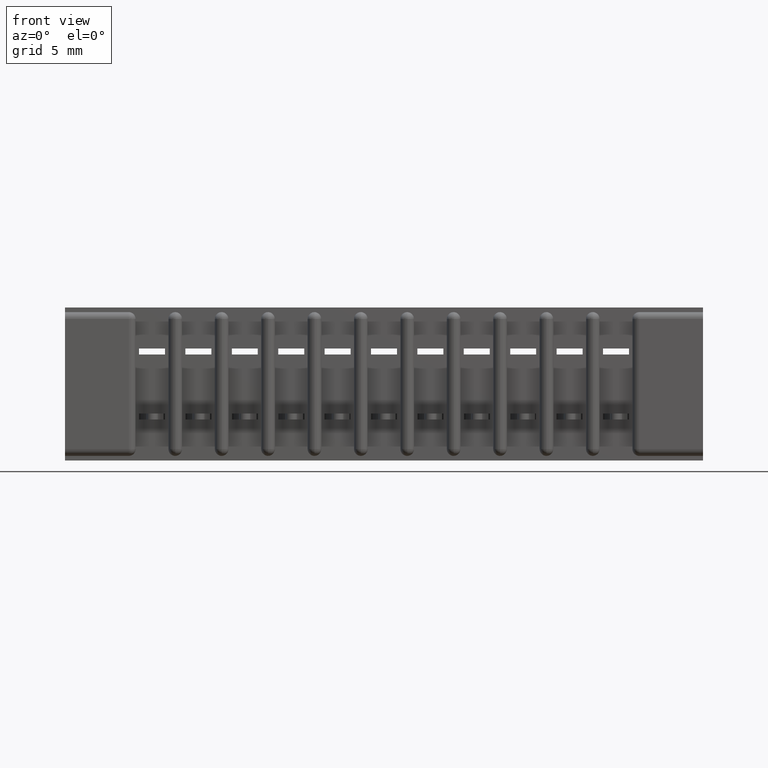
[diagram: clean part render]
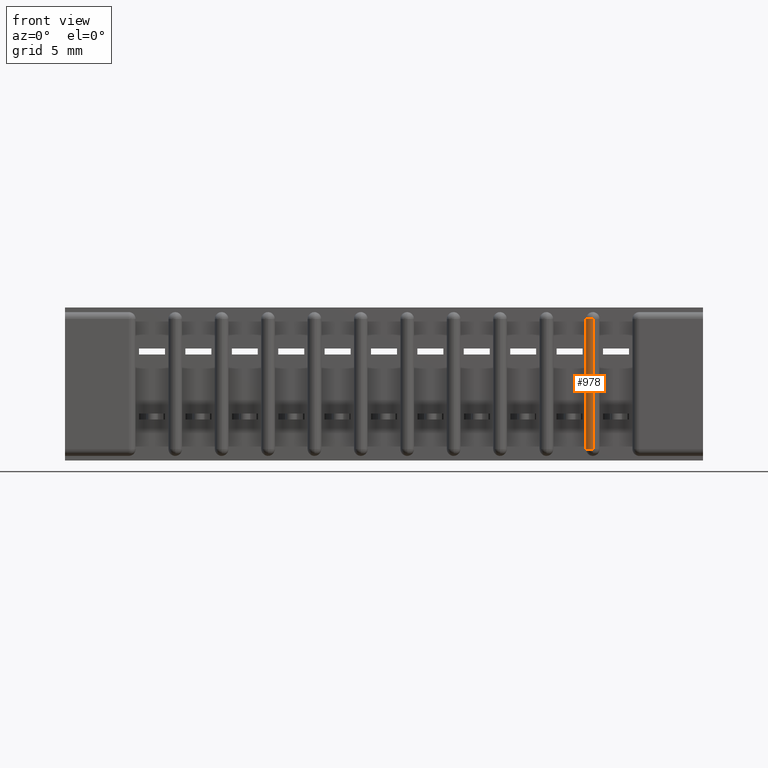
[diagram: same view with one face highlighted and labeled with its STEP entity id]
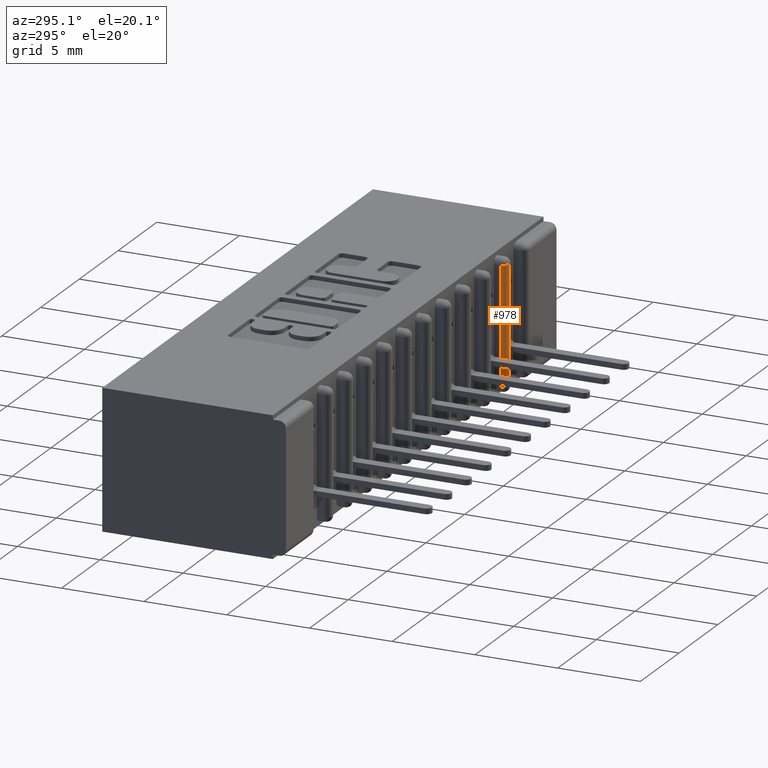
[diagram: same view with one face highlighted and labeled with its STEP entity id]
A machine part, front view. The second image highlights one B-rep face of the part: STEP entity #978.
A second angle (auxiliary view) of the same face is appended — the face is thin or edge-on in the first view.
In plain terms, the highlighted cylindrical surface (edge-blend (fillet) strip) has radius 0.381 mm, axis along (0, 0, 1).
Its self-contained STEP definition (entity closure, byte-faithful):
#59 = VERTEX_POINT ( 'NONE', #14224 ) ;
#647 = CARTESIAN_POINT ( 'NONE',  ( 1.437750000000000500, 0.01499999999999999900, -0.02499999999999997400 ) ) ;
#857 = EDGE_CURVE ( 'NONE', #7519, #3554, #4468, .T. ) ;
#978 = ADVANCED_FACE ( 'NONE', ( #3733 ), #3588, .T. ) ;
#1093 = EDGE_CURVE ( 'NONE', #59, #3554, #3076, .T. ) ;
#1196 = EDGE_CURVE ( 'NONE', #10614, #59, #2668, .T. ) ;
#2043 = DIRECTION ( 'NONE',  ( 0.0000000000000000000, 0.0000000000000000000, -1.000000000000000000 ) ) ;
#2668 = CIRCLE ( 'NONE', #3847, 0.01499999999999997700 ) ;
#2988 = CARTESIAN_POINT ( 'NONE',  ( 1.437750000000000500, 0.0000000000000000000, -0.3049999999999999400 ) ) ;
#3076 = LINE ( 'NONE', #2988, #3112 ) ;
#3112 = VECTOR ( 'NONE', #2043, 39.37007874015748100 ) ;
#3554 = VERTEX_POINT ( 'NONE', #15551 ) ;
#3588 = CYLINDRICAL_SURFACE ( 'NONE', #6602, 0.01499999999999997700 ) ;
#3733 = FACE_OUTER_BOUND ( 'NONE', #7275, .T. ) ;
#3847 = AXIS2_PLACEMENT_3D ( 'NONE', #647, #15198, #15361 ) ;
#4468 = CIRCLE ( 'NONE', #11201, 0.01499999999999997700 ) ;
#4584 = ORIENTED_EDGE ( 'NONE', *, *, #857, .T. ) ;
#4608 = ORIENTED_EDGE ( 'NONE', *, *, #1093, .F. ) ;
#4698 = ORIENTED_EDGE ( 'NONE', *, *, #1196, .F. ) ;
#4782 = ORIENTED_EDGE ( 'NONE', *, *, #9567, .F. ) ;
#4996 = CARTESIAN_POINT ( 'NONE',  ( 1.437750000000000500, 0.01499999999999999900, -0.3049999999999999400 ) ) ;
#5662 = CARTESIAN_POINT ( 'NONE',  ( 1.437750000000000500, 0.01499999999999999900, -0.3300000000000000200 ) ) ;
#6107 = DIRECTION ( 'NONE',  ( 0.0000000000000000000, 0.0000000000000000000, 1.000000000000000000 ) ) ;
#6602 = AXIS2_PLACEMENT_3D ( 'NONE', #5662, #15231, #9377 ) ;
#6720 = DIRECTION ( 'NONE',  ( 1.000000000000000000, 0.0000000000000000000, 0.0000000000000000000 ) ) ;
#7275 = EDGE_LOOP ( 'NONE', ( #4584, #4608, #4698, #4782 ) ) ;
#7519 = VERTEX_POINT ( 'NONE', #11213 ) ;
#9377 = DIRECTION ( 'NONE',  ( 1.000000000000000000, 0.0000000000000000000, 0.0000000000000000000 ) ) ;
#9567 = EDGE_CURVE ( 'NONE', #7519, #10614, #11161, .T. ) ;
#10614 = VERTEX_POINT ( 'NONE', #12064 ) ;
#11148 = VECTOR ( 'NONE', #12779, 39.37007874015748100 ) ;
#11161 = LINE ( 'NONE', #14343, #11148 ) ;
#11201 = AXIS2_PLACEMENT_3D ( 'NONE', #4996, #6107, #6720 ) ;
#11213 = CARTESIAN_POINT ( 'NONE',  ( 1.422750000000000600, 0.01499999999999999900, -0.3049999999999999400 ) ) ;
#12064 = CARTESIAN_POINT ( 'NONE',  ( 1.422750000000000600, 0.01499999999999999900, -0.02499999999999997400 ) ) ;
#12779 = DIRECTION ( 'NONE',  ( -0.0000000000000000000, 0.0000000000000000000, 1.000000000000000000 ) ) ;
#14224 = CARTESIAN_POINT ( 'NONE',  ( 1.437750000000000500, 0.0000000000000000000, -0.02499999999999997400 ) ) ;
#14343 = CARTESIAN_POINT ( 'NONE',  ( 1.422750000000000600, 0.01499999999999999900, -0.02499999999999997400 ) ) ;
#15198 = DIRECTION ( 'NONE',  ( 0.0000000000000000000, 0.0000000000000000000, 1.000000000000000000 ) ) ;
#15231 = DIRECTION ( 'NONE',  ( -0.0000000000000000000, 0.0000000000000000000, 1.000000000000000000 ) ) ;
#15361 = DIRECTION ( 'NONE',  ( 1.000000000000000000, 0.0000000000000000000, 0.0000000000000000000 ) ) ;
#15551 = CARTESIAN_POINT ( 'NONE',  ( 1.437750000000000500, 0.0000000000000000000, -0.3049999999999999400 ) ) ;